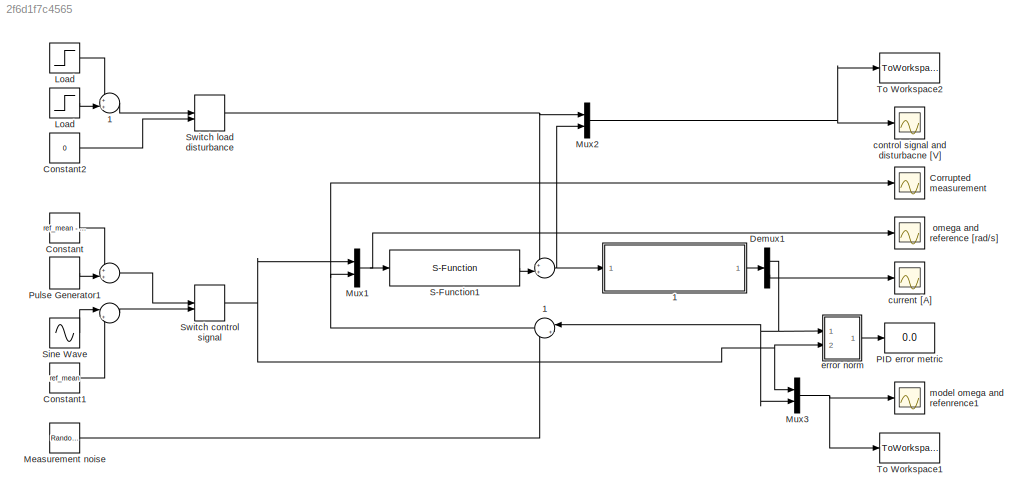
MODEL slx_2f6d1f7c4565
KIND model
CONFIG AbsTol = auto
CONFIG FixedStep = auto
CONFIG MaxStep = auto
CONFIG MinStep = auto
CONFIG RelTol = 1e-3
CONFIG SampleTimeConstraint = Unconstrained
CONFIG Solver = VariableStepAuto
CONFIG SolverMode = Auto
CONFIG SolverName = VariableStepAuto
CONFIG StartTime = 0.0
CONFIG StopTime = 30
BLOCK [Sum]  
  IconShape = round
  InputSameDT = off
  Inputs = ++|
  OutDataTypeStr = Inherit: Inherit via internal rule
  Ports = [2, 1]
  SaturateOnIntegerOverflow = off
BLOCK [Sum]       
  IconShape = round
  InputSameDT = off
  Inputs = ++|
  OutDataTypeStr = Inherit: Inherit via internal rule
  Ports = [2, 1]
  SaturateOnIntegerOverflow = off
BLOCK [Sum]        
  IconShape = round
  InputSameDT = off
  Inputs = |++
  OutDataTypeStr = Inherit: Inherit via internal rule
  Ports = [2, 1]
  SaturateOnIntegerOverflow = off
BLOCK [Sum]        1
  IconShape = round
  InputSameDT = off
  Inputs = |++
  OutDataTypeStr = Inherit: Inherit via internal rule
  Ports = [2, 1]
  SaturateOnIntegerOverflow = off
BLOCK [Sum]       1
  IconShape = round
  InputSameDT = off
  Inputs = ++|
  OutDataTypeStr = Inherit: Inherit via internal rule
  Ports = [2, 1]
  SaturateOnIntegerOverflow = off
BLOCK [ModelReference]    1
  ModelNameDialog = rotor_model_c.slx
  ModelReferenceVersion = 1.30
  Ports = [1, 1]
  Variant = off
BLOCK [Scope]  omega and reference [rad//s]
  Ports = [1]
  ScopeSpecificationString = Simulink.scopes.TimeScopeBlockCfg('CurrentConfiguration', extmgr.ConfigurationSet(extmgr.Configuration('Core','General UI',true),extmgr.Configuration('Core','Source UI',true),extmgr.Configuration('Sources','WiredSimulink',true,'DataLoggingVariableName','ScopeData2'),extmgr.Configuration('Visuals','Time Domain',true,'SerializedDisplays',{struct('MinYLimReal','-278.31344','MaxYLimReal','2519.40194',...<+1409ch>
BLOCK [Constant] Constant
  Value = ref_mean - ref_amp
BLOCK [Constant] Constant1
  Value = ref_mean
BLOCK [Constant] Constant2
  Value = 0
BLOCK [Scope] Corrupted measurement
  Ports = [1]
  ScopeSpecificationString = Simulink.scopes.TimeScopeBlockCfg('CurrentConfiguration', extmgr.ConfigurationSet(extmgr.Configuration('Core','General UI',true),extmgr.Configuration('Core','Source UI',true),extmgr.Configuration('Sources','WiredSimulink',true,'DataLoggingVariableName','ScopeData4'),extmgr.Configuration('Visuals','Time Domain',true,'SerializedDisplays',{struct('MinYLimReal','-126.80761','MaxYLimReal','1149.48228',...<+1385ch>
BLOCK [Demux] Demux1
  DisplayOption = bar
  Outputs = 2
  Ports = [1, 2]
BLOCK [Step] Load
  After = -load_amp
  SampleTime = 0
  Time = load_finish
BLOCK [Step] Load 
  After = load_amp
  SampleTime = 0
  Time = load_start
BLOCK [RandomNumber] Measurement noise
  SampleTime = rotor_h
  Variance = measurement_variance
BLOCK [Mux] Mux1
  DisplayOption = bar
  Inputs = 2
  Ports = [2, 1]
BLOCK [Mux] Mux2
  DisplayOption = bar
  Inputs = 2
  Ports = [2, 1]
BLOCK [Mux] Mux3
  DisplayOption = bar
  Inputs = 2
  Ports = [2, 1]
BLOCK [Display] PID error metric
  Decimation = 1
  Ports = [1]
BLOCK [DiscretePulseGenerator] Pulse Generator1
  Amplitude = ref_amp*2
  Period = pulse_period
  Ports = [0, 1]
  PulseType = Time based
  PulseWidth = 50
BLOCK [S-Function] S-Function1
  EnableBusSupport = off
  FunctionName = sfunc_rotor_PPC_d
  Parameters = MOPPCparam
  Ports = [1, 1]
  SFunctionDeploymentMode = off
BLOCK [Sin] Sine Wave
  Amplitude = 200
  Frequency = sinusoid_frequency
  Ports = [0, 1]
  SampleTime = 0
BLOCK [ManualSwitch] Switch control signal
BLOCK [ManualSwitch] Switch load disturbance
  CurrentSetting = 0
BLOCK [ToWorkspace] To Workspace1
  FixptAsFi = on
  MaxDataPoints = inf
  Ports = [1]
  SampleTime = -1
  Save2DSignal = 3-D array (concatenate along third dimension)
  SaveFormat = Timeseries
  VariableName = omegaref
BLOCK [ToWorkspace] To Workspace2
  FixptAsFi = on
  MaxDataPoints = inf
  Ports = [1]
  SampleTime = -1
  Save2DSignal = 3-D array (concatenate along third dimension)
  SaveFormat = Timeseries
  VariableName = controlsig
BLOCK [Scope] control signal and disturbacne  [V]
  Ports = [1]
  ScopeSpecificationString = C++SS(StrPVP('SaveName','ScopeData5'),StrPVP('LimitDataPoints','on'),StrPVP('DataFormat','Array'),StrPVP('Decimation','1'),StrPVP('BlockParamSampleInput','off'))
BLOCK [Scope] current [A]   
  Ports = [1]
  ScopeSpecificationString = Simulink.scopes.TimeScopeBlockCfg('CurrentConfiguration', extmgr.ConfigurationSet(extmgr.Configuration('Core','General UI',true),extmgr.Configuration('Core','Source UI',true),extmgr.Configuration('Sources','WiredSimulink',true,'DataLoggingVariableName','ScopeData6'),extmgr.Configuration('Visuals','Time Domain',true,'SerializedDisplays',{struct('MinYLimReal','-0.1165','MaxYLimReal','1.04853','YLabe...<+1365ch>
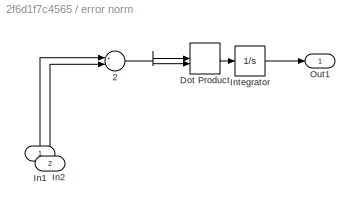
BLOCK [SubSystem] error norm
  Ports = [2, 1]
  RequestExecContextInheritance = off
  Variant = off
BLOCK [Sum] error norm/      2
  InputSameDT = off
  Inputs = +-
  OutDataTypeStr = Inherit: Inherit via internal rule
  Ports = [2, 1]
  SaturateOnIntegerOverflow = off
BLOCK [DotProduct] error norm/Dot Product
  OutDataTypeStr = Inherit: Inherit via internal rule
BLOCK [Inport] error norm/In1
  IconDisplay = Port number
BLOCK [Inport] error norm/In2
  IconDisplay = Port number
  Port = 2
BLOCK [Integrator] error norm/Integrator
  Ports = [1, 1]
BLOCK [Outport] error norm/Out1
  IconDisplay = Port number
BLOCK [Scope] model omega and refenrence1
  Ports = [1]
  ScopeSpecificationString = Simulink.scopes.TimeScopeBlockCfg('CurrentConfiguration', extmgr.ConfigurationSet(extmgr.Configuration('Core','General UI',true),extmgr.Configuration('Core','Source UI',true),extmgr.Configuration('Sources','WiredSimulink',true,'DataLoggingVariableName','ScopeData7'),extmgr.Configuration('Visuals','Time Domain',true,'SerializedDisplays',{struct('MinYLimReal','-279.09186','MaxYLimReal','2511.8267','...<+1405ch>
NET        1:1 -> Corrupted measurement:1, Mux1:2
LINE        :1 -> Switch control signal:2
LINE       1:1 -> Switch load disturbance:1
LINE       :1 -> Switch control signal:1
LINE    1:1 -> Demux1:1
NET  :1 ->    1:1, Mux2:2
LINE Constant1:1 ->        :2
LINE Constant2:1 -> Switch load disturbance:2
LINE Constant:1 ->       :1
NET Demux1:1 ->        1:1, Mux3:2, error norm:1
LINE Demux1:2 -> current [A]   :1
LINE Load :1 ->       1:1
LINE Load:1 ->       1:2
LINE Measurement noise:1 ->        1:2
NET Mux1:1 ->  omega and reference [rad//s]:1, S-Function1:1
NET Mux2:1 -> To Workspace2:1, control signal and disturbacne  [V]:1
NET Mux3:1 -> To Workspace1:1, model omega and refenrence1:1
LINE Pulse Generator1:1 ->       :2
LINE S-Function1:1 ->  :2
LINE Sine Wave:1 ->        :1
NET Switch control signal:1 -> Mux1:1, Mux3:1, error norm:2
NET Switch load disturbance:1 ->  :1, Mux2:1
NET error norm/      2:1 -> error norm/Dot Product:1, error norm/Dot Product:2
LINE error norm/Dot Product:1 -> error norm/Integrator:1
LINE error norm/In1:1 -> error norm/      2:1
LINE error norm/In2:1 -> error norm/      2:2
LINE error norm/Integrator:1 -> error norm/Out1:1
LINE error norm:1 -> PID error metric:1
note: NET lines group one-source signal fan-out (src -> all destinations, sorted); 1:1 wires keep LINE
